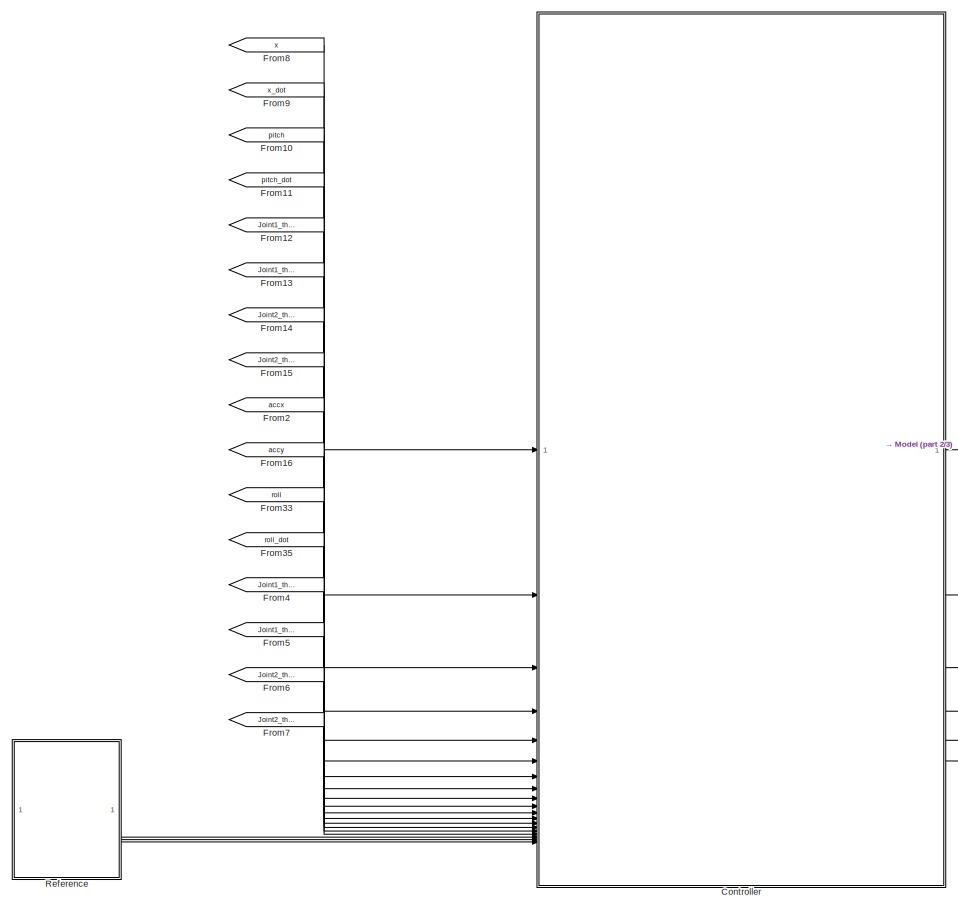
[diagram: root canvas - part 1/3, top left region]
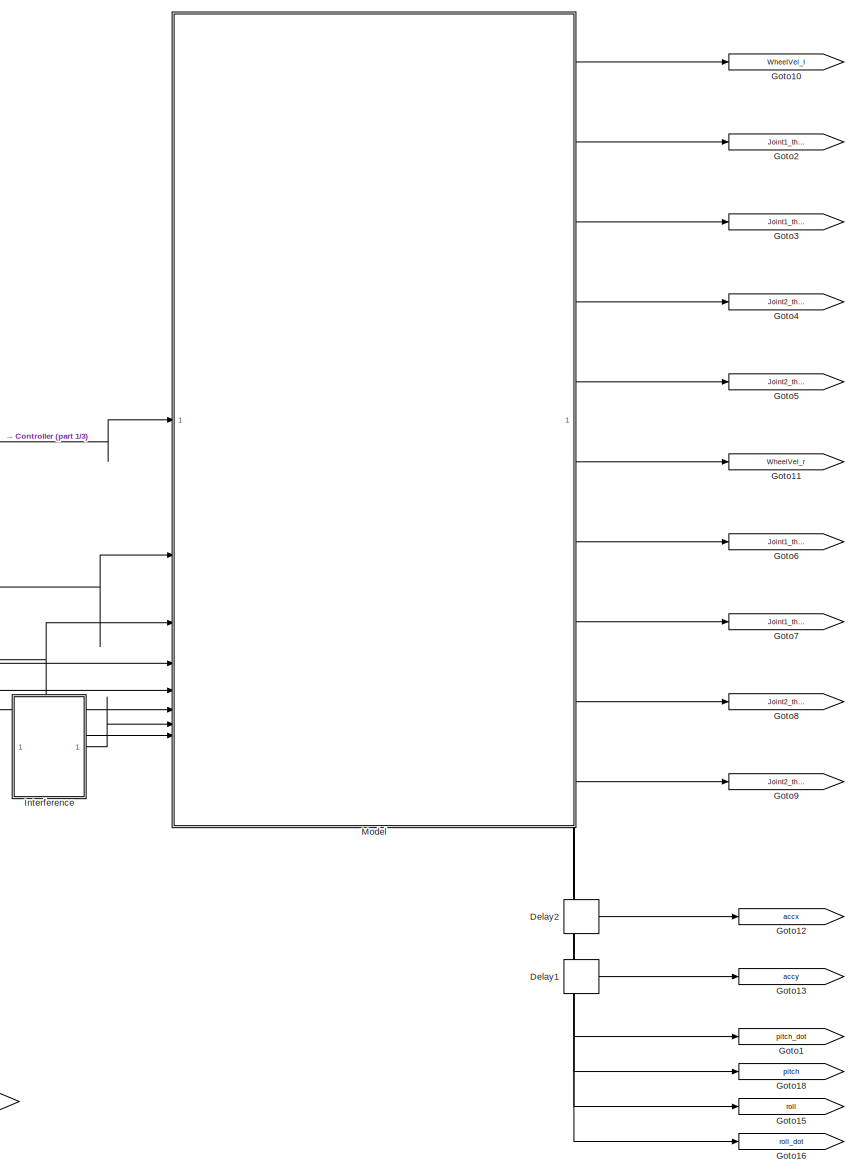
[diagram: root canvas - part 2/3, right side, full height]
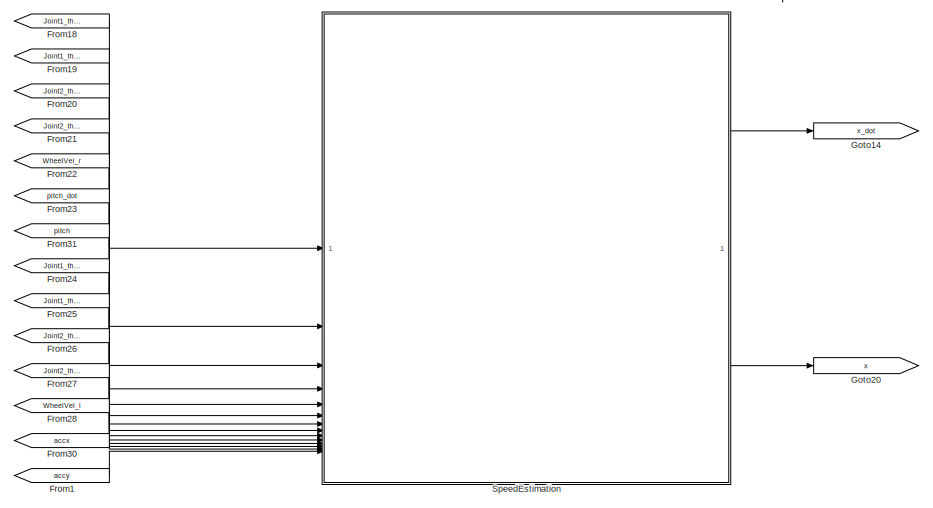
[diagram: root canvas - part 3/3, bottom center region]
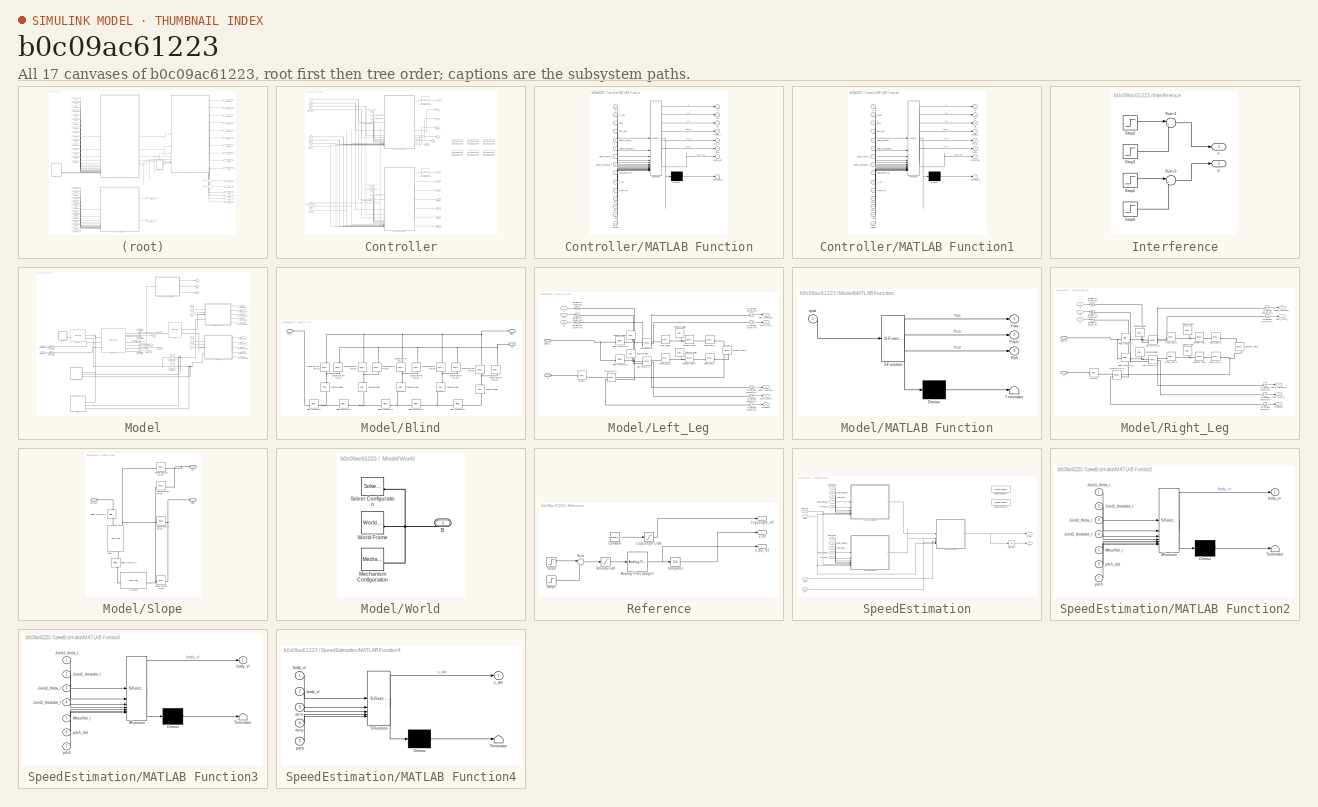
[diagram: thumbnail index - all 17 canvases of the model, root first then tree order]
MODEL slx_b0c09ac61223
KIND model
CONFIG AbsTol = 1e-3
CONFIG EnableMultiTasking = off
CONFIG FixedStep = 0.001
CONFIG MaxStep = auto
CONFIG MinStep = auto
CONFIG RelTol = 1e-3
CONFIG SampleTimeConstraint = Unconstrained
CONFIG SolverName = FixedStepAuto
CONFIG StartTime = 0.0
CONFIG StopTime = 10
WORKSPACE source: external: MATLAB File  (data not in archive)
BLOCK [SubSystem] Controller
BLOCK [Reference] Controller/Analog Filter Design1  REF=dspfdesign/Analog
Filter Design
  SourceBlock = dspfdesign/Analog\nFilter Design
  SourceType = Analog Filter Design
BLOCK [Reference] Controller/Analog Filter Design2  REF=dspfdesign/Analog
Filter Design
  SourceBlock = dspfdesign/Analog\nFilter Design
  SourceType = Analog Filter Design
BLOCK [DataStoreMemory] Controller/Data Store Memory
  DataStoreName = theta_dot_llast
  OutDataTypeStr = double
  ShowAdditionalParam = off
  SignalType = real
  WriteAfterWriteMsg = warning
BLOCK [DataStoreMemory] Controller/Data Store Memory1
  DataStoreName = LegLength_dot_llast
  OutDataTypeStr = double
  ShowAdditionalParam = off
  SignalType = real
  WriteAfterWriteMsg = warning
BLOCK [DataStoreMemory] Controller/Data Store Memory2
  DataStoreName = theta_dot_rlast
  OutDataTypeStr = double
  ShowAdditionalParam = off
  SignalType = real
  WriteAfterWriteMsg = warning
BLOCK [DataStoreMemory] Controller/Data Store Memory3
  DataStoreName = LegLength_dot_rlast
  OutDataTypeStr = double
  ShowAdditionalParam = off
  SignalType = real
  WriteAfterWriteMsg = warning
BLOCK [DataStoreMemory] Controller/Data Store Memory4
  DataStoreName = FN_l
  InitialValue = 110
  OutDataTypeStr = double
  ShowAdditionalParam = off
  SignalType = real
  WriteAfterWriteMsg = warning
BLOCK [DataStoreMemory] Controller/Data Store Memory5
  DataStoreName = FN_r
  InitialValue = 110
  OutDataTypeStr = double
  ShowAdditionalParam = off
  SignalType = real
  WriteAfterWriteMsg = warning
BLOCK [Outport] Controller/FN_lo
  Port = 8
BLOCK [Outport] Controller/FN_ro
  Port = 10
BLOCK [Outport] Controller/Height_l
  Port = 7
BLOCK [Outport] Controller/Height_r
  Port = 9
BLOCK [Inport] Controller/Joint1_theta_l
  Port = 5
BLOCK [Inport] Controller/Joint1_theta_r
  Port = 13
BLOCK [Inport] Controller/Joint1_thetadot_l
  Port = 6
BLOCK [Inport] Controller/Joint1_thetadot_r
  Port = 14
BLOCK [Inport] Controller/Joint2_theta_l
  Port = 7
BLOCK [Inport] Controller/Joint2_theta_r
  Port = 15
BLOCK [Inport] Controller/Joint2_thetadot_l
  Port = 8
BLOCK [Inport] Controller/Joint2_thetadot_r
  Port = 16
BLOCK [Inport] Controller/LegLength_ref
  Port = 17
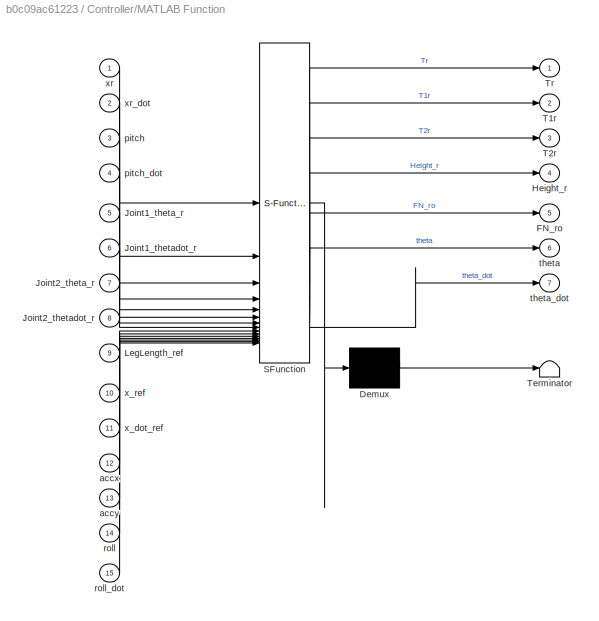
BLOCK [SubSystem] Controller/MATLAB Function
  ErrorFcn = Stateflow.Translate.translate
  PermitHierarchicalResolution = ExplicitOnly
  SFBlockType = MATLAB Function
  SystemSampleTime = 0.001
  TreatAsAtomicUnit = on
BLOCK [Demux] Controller/MATLAB Function/ Demux 
  Outputs = 1
BLOCK [S-Function] Controller/MATLAB Function/ SFunction 
  EnableBusSupport = on
  FunctionName = sf_sfun
  PortCounts = [15 8]
  SFcnIsStateOwnerBlock = off
  SFunctionDeploymentMode = off
  Tag = Stateflow S-Function 1
BLOCK [Terminator] Controller/MATLAB Function/ Terminator 
BLOCK [Outport] Controller/MATLAB Function/FN_ro
  Port = 5
BLOCK [Outport] Controller/MATLAB Function/Height_r
  Port = 4
BLOCK [Inport] Controller/MATLAB Function/Joint1_theta_r
  Port = 5
BLOCK [Inport] Controller/MATLAB Function/Joint1_thetadot_r
  Port = 6
BLOCK [Inport] Controller/MATLAB Function/Joint2_theta_r
  Port = 7
BLOCK [Inport] Controller/MATLAB Function/Joint2_thetadot_r
  Port = 8
BLOCK [Inport] Controller/MATLAB Function/LegLength_ref
  Port = 9
BLOCK [Outport] Controller/MATLAB Function/T1r
  Port = 2
BLOCK [Outport] Controller/MATLAB Function/T2r
  Port = 3
BLOCK [Outport] Controller/MATLAB Function/Tr
BLOCK [Inport] Controller/MATLAB Function/accx
  Port = 12
BLOCK [Inport] Controller/MATLAB Function/accy
  Port = 13
BLOCK [Inport] Controller/MATLAB Function/pitch
  Port = 3
BLOCK [Inport] Controller/MATLAB Function/pitch_dot
  Port = 4
BLOCK [Inport] Controller/MATLAB Function/roll
  Port = 14
BLOCK [Inport] Controller/MATLAB Function/roll_dot
  Port = 15
BLOCK [Outport] Controller/MATLAB Function/theta
  Port = 6
BLOCK [Outport] Controller/MATLAB Function/theta_dot
  Port = 7
BLOCK [Inport] Controller/MATLAB Function/x_dot_ref
  Port = 11
BLOCK [Inport] Controller/MATLAB Function/x_ref
  Port = 10
BLOCK [Inport] Controller/MATLAB Function/xr
BLOCK [Inport] Controller/MATLAB Function/xr_dot
  Port = 2
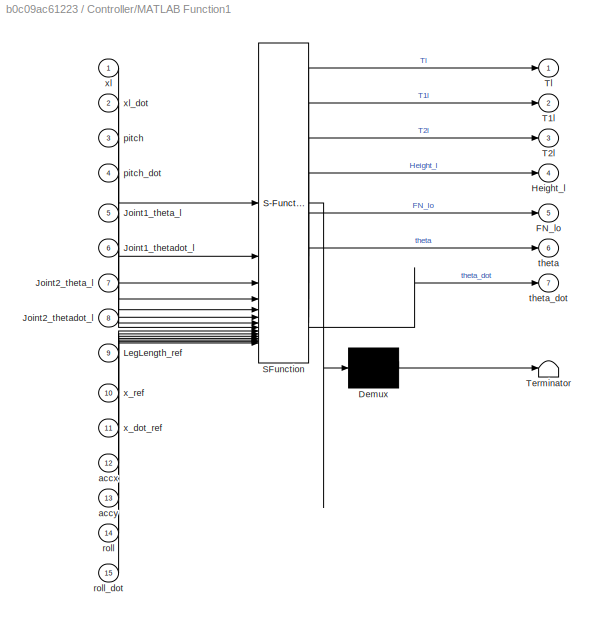
BLOCK [SubSystem] Controller/MATLAB Function1
  ErrorFcn = Stateflow.Translate.translate
  PermitHierarchicalResolution = ExplicitOnly
  SFBlockType = MATLAB Function
  SystemSampleTime = 0.001
  TreatAsAtomicUnit = on
BLOCK [Demux] Controller/MATLAB Function1/ Demux 
  Outputs = 1
BLOCK [S-Function] Controller/MATLAB Function1/ SFunction 
  EnableBusSupport = on
  FunctionName = sf_sfun
  PortCounts = [15 8]
  SFcnIsStateOwnerBlock = off
  SFunctionDeploymentMode = off
  Tag = Stateflow S-Function 3
BLOCK [Terminator] Controller/MATLAB Function1/ Terminator 
BLOCK [Outport] Controller/MATLAB Function1/FN_lo
  Port = 5
BLOCK [Outport] Controller/MATLAB Function1/Height_l
  Port = 4
BLOCK [Inport] Controller/MATLAB Function1/Joint1_theta_l
  Port = 5
BLOCK [Inport] Controller/MATLAB Function1/Joint1_thetadot_l
  Port = 6
BLOCK [Inport] Controller/MATLAB Function1/Joint2_theta_l
  Port = 7
BLOCK [Inport] Controller/MATLAB Function1/Joint2_thetadot_l
  Port = 8
BLOCK [Inport] Controller/MATLAB Function1/LegLength_ref
  Port = 9
BLOCK [Outport] Controller/MATLAB Function1/T1l
  Port = 2
BLOCK [Outport] Controller/MATLAB Function1/T2l
  Port = 3
BLOCK [Outport] Controller/MATLAB Function1/Tl
BLOCK [Inport] Controller/MATLAB Function1/accx
  Port = 12
BLOCK [Inport] Controller/MATLAB Function1/accy
  Port = 13
BLOCK [Inport] Controller/MATLAB Function1/pitch
  Port = 3
BLOCK [Inport] Controller/MATLAB Function1/pitch_dot
  Port = 4
BLOCK [Inport] Controller/MATLAB Function1/roll
  Port = 14
BLOCK [Inport] Controller/MATLAB Function1/roll_dot
  Port = 15
BLOCK [Outport] Controller/MATLAB Function1/theta
  Port = 6
BLOCK [Outport] Controller/MATLAB Function1/theta_dot
  Port = 7
BLOCK [Inport] Controller/MATLAB Function1/x_dot_ref
  Port = 11
BLOCK [Inport] Controller/MATLAB Function1/x_ref
  Port = 10
BLOCK [Inport] Controller/MATLAB Function1/xl
BLOCK [Inport] Controller/MATLAB Function1/xl_dot
  Port = 2
BLOCK [Outport] Controller/T1l
  Port = 2
BLOCK [Outport] Controller/T1r
  Port = 5
BLOCK [Outport] Controller/T2l
  Port = 3
BLOCK [Outport] Controller/T2r
  Port = 6
BLOCK [Outport] Controller/Theta
  Port = 11
BLOCK [Outport] Controller/Theta_d
  Port = 12
BLOCK [Outport] Controller/Tl
BLOCK [Outport] Controller/Tr
  Port = 4
BLOCK [Inport] Controller/accx
  Port = 9
BLOCK [Inport] Controller/accy
  Port = 10
BLOCK [Inport] Controller/pitch
  Port = 3
BLOCK [Inport] Controller/pitch_dot
  Port = 4
BLOCK [Inport] Controller/roll
  Port = 11
BLOCK [Inport] Controller/roll_dot
  Port = 12
BLOCK [Outport] Controller/theta
  Port = 13
BLOCK [Outport] Controller/theta_d
  Port = 14
BLOCK [Inport] Controller/x
BLOCK [Inport] Controller/x_dot
  Port = 2
BLOCK [Inport] Controller/x_dot_ref
  Port = 19
BLOCK [Inport] Controller/x_ref
  Port = 18
BLOCK [Delay] Delay1
  DelayLength = 5
  InputPortMap = u0
BLOCK [Delay] Delay2
  DelayLength = 5
  InputPortMap = u0
BLOCK [From] From1
  GotoTag = accy
BLOCK [From] From10
  GotoTag = pitch
BLOCK [From] From11
  GotoTag = pitch_dot
BLOCK [From] From12
  GotoTag = Joint1_theta_l
BLOCK [From] From13
  GotoTag = Joint1_thetadot_l
BLOCK [From] From14
  GotoTag = Joint2_theta_l
BLOCK [From] From15
  GotoTag = Joint2_thetadot_l
BLOCK [From] From16
  GotoTag = accy
BLOCK [From] From18
  GotoTag = Joint1_theta_r
BLOCK [From] From19
  GotoTag = Joint1_thetadot_r
BLOCK [From] From2
  GotoTag = accx
BLOCK [From] From20
  GotoTag = Joint2_theta_r
BLOCK [From] From21
  GotoTag = Joint2_thetadot_r
BLOCK [From] From22
  GotoTag = WheelVel_r
BLOCK [From] From23
  GotoTag = pitch_dot
BLOCK [From] From24
  GotoTag = Joint1_theta_l
BLOCK [From] From25
  GotoTag = Joint1_thetadot_l
BLOCK [From] From26
  GotoTag = Joint2_theta_l
BLOCK [From] From27
  GotoTag = Joint2_thetadot_l
BLOCK [From] From28
  GotoTag = WheelVel_l
BLOCK [From] From30
  GotoTag = accx
BLOCK [From] From31
  GotoTag = pitch
BLOCK [From] From33
  GotoTag = roll
BLOCK [From] From35
  GotoTag = roll_dot
BLOCK [From] From4
  GotoTag = Joint1_theta_r
BLOCK [From] From5
  GotoTag = Joint1_thetadot_r
BLOCK [From] From6
  GotoTag = Joint2_theta_r
BLOCK [From] From7
  GotoTag = Joint2_thetadot_r
BLOCK [From] From8
  GotoTag = x
BLOCK [From] From9
  GotoTag = x_dot
BLOCK [Goto] Goto1
  GotoTag = pitch_dot
BLOCK [Goto] Goto10
  GotoTag = WheelVel_l
BLOCK [Goto] Goto11
  GotoTag = WheelVel_r
BLOCK [Goto] Goto12
  GotoTag = accx
BLOCK [Goto] Goto13
  GotoTag = accy
BLOCK [Goto] Goto14
  GotoTag = x_dot
BLOCK [Goto] Goto15
  GotoTag = roll
BLOCK [Goto] Goto16
  GotoTag = roll_dot
BLOCK [Goto] Goto18
  GotoTag = pitch
BLOCK [Goto] Goto2
  GotoTag = Joint1_theta_l
BLOCK [Goto] Goto20
  GotoTag = x
BLOCK [Goto] Goto3
  GotoTag = Joint1_thetadot_l
BLOCK [Goto] Goto4
  GotoTag = Joint2_theta_l
BLOCK [Goto] Goto5
  GotoTag = Joint2_thetadot_l
BLOCK [Goto] Goto6
  GotoTag = Joint1_theta_r
BLOCK [Goto] Goto7
  GotoTag = Joint1_thetadot_r
BLOCK [Goto] Goto8
  GotoTag = Joint2_theta_r
BLOCK [Goto] Goto9
  GotoTag = Joint2_thetadot_r
BLOCK [SubSystem] Interference
BLOCK [Step] Interference/Step1
  After = y_force
  SampleTime = 0
  Time = 0.5
BLOCK [Step] Interference/Step2
  After = x_force
  SampleTime = 0
  Time = 0.5
BLOCK [Step] Interference/Step3
  After = x_force
  SampleTime = 0
  Time = 0.5+x_time
BLOCK [Step] Interference/Step6
  After = y_force
  SampleTime = 0
  Time = 0.5+y_time
BLOCK [Sum] Interference/Sum1
  Inputs = |+-
BLOCK [Sum] Interference/Sum3
  Inputs = |+-
BLOCK [Outport] Interference/x
BLOCK [Outport] Interference/y
  Port = 2
BLOCK [SubSystem] Model
  PortSchema = {"entries":[{"content":{"sides":[{"content":{"connectorIds":["In1","In2","In3","In4","In5","In6","In7","In8"]},"type":"ConnectorPlacement.EquallySpacedRectSide","uuid":"a2ef8d1c-db40-41d8-a076-97a3cc9cbcfc"},{"content":{"connectorIds":["Out1","Out2","Out3","Out4","Out5","Out6","Out7","Out8","Out9","Out10"],"side":"RIGHT"},"type":"ConnectorPlacement.EquallySpacedRectSide","uuid":"78dabc19-8860-4beb...<+535ch>
BLOCK [Reference] Model/6-DOF Joint  REF=sm_lib/Joints/6-DOF Joint
  SourceBlock = sm_lib/Joints/6-DOF Joint
  SourceType = 6-DOF Joint
BLOCK [SubSystem] Model/Blind
  NameLocation = top
BLOCK [PMIOPort] Model/Blind/Base
  Side = Left
BLOCK [Reference] Model/Blind/Cylindrical Solid1  REF=sm_lib/Body Elements/Cylindrical Solid
  NameLocation = left
  SourceBlock = sm_lib/Body Elements/Cylindrical Solid
  SourceType = Cylindrical Solid
BLOCK [Reference] Model/Blind/Cylindrical Solid2  REF=sm_lib/Body Elements/Cylindrical Solid
  NameLocation = left
  SourceBlock = sm_lib/Body Elements/Cylindrical Solid
  SourceType = Cylindrical Solid
BLOCK [Reference] Model/Blind/Cylindrical Solid3  REF=sm_lib/Body Elements/Cylindrical Solid
  NameLocation = left
  SourceBlock = sm_lib/Body Elements/Cylindrical Solid
  SourceType = Cylindrical Solid
BLOCK [Reference] Model/Blind/Cylindrical Solid4  REF=sm_lib/Body Elements/Cylindrical Solid
  NameLocation = left
  SourceBlock = sm_lib/Body Elements/Cylindrical Solid
  SourceType = Cylindrical Solid
BLOCK [Reference] Model/Blind/Cylindrical Solid6  REF=sm_lib/Body Elements/Cylindrical Solid
  NameLocation = left
  SourceBlock = sm_lib/Body Elements/Cylindrical Solid
  SourceType = Cylindrical Solid
BLOCK [PMIOPort] Model/Blind/Left
  NameLocation = top
  Port = 3
  Side = Left
BLOCK [PMIOPort] Model/Blind/Right
  NameLocation = top
  Port = 2
  Side = Left
BLOCK [Reference] Model/Blind/Rigid Transform  REF=sm_lib/Frames and
Transforms/Rigid
Transform
  SourceBlock = sm_lib/Frames and\nTransforms/Rigid\nTransform
  SourceType = Rigid\nTransform
BLOCK [Reference] Model/Blind/Rigid Transform1  REF=sm_lib/Frames and
Transforms/Rigid
Transform
  SourceBlock = sm_lib/Frames and\nTransforms/Rigid\nTransform
  SourceType = Rigid\nTransform
BLOCK [Reference] Model/Blind/Rigid Transform2  REF=sm_lib/Frames and
Transforms/Rigid
Transform
  SourceBlock = sm_lib/Frames and\nTransforms/Rigid\nTransform
  SourceType = Rigid\nTransform
BLOCK [Reference] Model/Blind/Rigid Transform3  REF=sm_lib/Frames and
Transforms/Rigid
Transform
  SourceBlock = sm_lib/Frames and\nTransforms/Rigid\nTransform
  SourceType = Rigid\nTransform
BLOCK [Reference] Model/Blind/Rigid Transform4  REF=sm_lib/Frames and
Transforms/Rigid
Transform
  SourceBlock = sm_lib/Frames and\nTransforms/Rigid\nTransform
  SourceType = Rigid\nTransform
BLOCK [Reference] Model/Blind/Spatial Contact Force1  REF=sm_lib/Forces and
Torques/Spatial
Contact Force
  NameLocation = right
  SourceBlock = sm_lib/Forces and\nTorques/Spatial\nContact Force
  SourceType = Spatial\nContact Force
BLOCK [Reference] Model/Blind/Spatial Contact Force10  REF=sm_lib/Forces and
Torques/Spatial
Contact Force
  NameLocation = right
  SourceBlock = sm_lib/Forces and\nTorques/Spatial\nContact Force
  SourceType = Spatial\nContact Force
BLOCK [Reference] Model/Blind/Spatial Contact Force2  REF=sm_lib/Forces and
Torques/Spatial
Contact Force
  NameLocation = right
  SourceBlock = sm_lib/Forces and\nTorques/Spatial\nContact Force
  SourceType = Spatial\nContact Force
BLOCK [Reference] Model/Blind/Spatial Contact Force3  REF=sm_lib/Forces and
Torques/Spatial
Contact Force
  NameLocation = right
  SourceBlock = sm_lib/Forces and\nTorques/Spatial\nContact Force
  SourceType = Spatial\nContact Force
BLOCK [Reference] Model/Blind/Spatial Contact Force4  REF=sm_lib/Forces and
Torques/Spatial
Contact Force
  NameLocation = right
  SourceBlock = sm_lib/Forces and\nTorques/Spatial\nContact Force
  SourceType = Spatial\nContact Force
BLOCK [Reference] Model/Blind/Spatial Contact Force5  REF=sm_lib/Forces and
Torques/Spatial
Contact Force
  NameLocation = right
  SourceBlock = sm_lib/Forces and\nTorques/Spatial\nContact Force
  SourceType = Spatial\nContact Force
BLOCK [Reference] Model/Blind/Spatial Contact Force6  REF=sm_lib/Forces and
Torques/Spatial
Contact Force
  NameLocation = right
  SourceBlock = sm_lib/Forces and\nTorques/Spatial\nContact Force
  SourceType = Spatial\nContact Force
BLOCK [Reference] Model/Blind/Spatial Contact Force7  REF=sm_lib/Forces and
Torques/Spatial
Contact Force
  NameLocation = right
  SourceBlock = sm_lib/Forces and\nTorques/Spatial\nContact Force
  SourceType = Spatial\nContact Force
BLOCK [Reference] Model/Blind/Spatial Contact Force8  REF=sm_lib/Forces and
Torques/Spatial
Contact Force
  NameLocation = right
  SourceBlock = sm_lib/Forces and\nTorques/Spatial\nContact Force
  SourceType = Spatial\nContact Force
BLOCK [Reference] Model/Blind/Spatial Contact Force9  REF=sm_lib/Forces and
Torques/Spatial
Contact Force
  NameLocation = right
  SourceBlock = sm_lib/Forces and\nTorques/Spatial\nContact Force
  SourceType = Spatial\nContact Force
BLOCK [Reference] Model/Body  REF=sm_lib/Body Elements/Brick Solid
  NameLocation = top
  SourceBlock = sm_lib/Body Elements/Brick Solid
  SourceType = Brick Solid
BLOCK [Reference] Model/Ground  REF=sm_lib/Body Elements/Brick Solid
  NameLocation = top
  SourceBlock = sm_lib/Body Elements/Brick Solid
  SourceType = Brick Solid
BLOCK [Outport] Model/Joint1_theta_l
  Port = 2
BLOCK [Outport] Model/Joint1_theta_r
  Port = 7
BLOCK [Outport] Model/Joint1_thetadot_l
  Port = 3
BLOCK [Outport] Model/Joint1_thetadot_r
  Port = 8
BLOCK [Outport] Model/Joint2_theta_l
  Port = 4
BLOCK [Outport] Model/Joint2_theta_r
  Port = 9
BLOCK [Outport] Model/Joint2_thetadot_l
  Port = 5
BLOCK [Outport] Model/Joint2_thetadot_r
  Port = 10
BLOCK [SubSystem] Model/Left_Leg
BLOCK [Reference] Model/Left_Leg/Active_Leg1_L  REF=sm_lib/Body Elements/Brick Solid
  SourceBlock = sm_lib/Body Elements/Brick Solid
  SourceType = Brick Solid
BLOCK [Reference] Model/Left_Leg/Active_Leg2_L  REF=sm_lib/Body Elements/Brick Solid
  SourceBlock = sm_lib/Body Elements/Brick Solid
  SourceType = Brick Solid
BLOCK [PMIOPort] Model/Left_Leg/Body_L
  Side = Left
BLOCK [Reference] Model/Left_Leg/Cylindrical Solid4  REF=sm_lib/Body Elements/Cylindrical Solid
  NameLocation = left
  SourceBlock = sm_lib/Body Elements/Cylindrical Solid
  SourceType = Cylindrical Solid
BLOCK [Reference] Model/Left_Leg/Cylindrical Solid5  REF=sm_lib/Body Elements/Cylindrical Solid
  NameLocation = left
  SourceBlock = sm_lib/Body Elements/Cylindrical Solid
  SourceType = Cylindrical Solid
BLOCK [Reference] Model/Left_Leg/Cylindrical Solid6  REF=sm_lib/Body Elements/Cylindrical Solid
  NameLocation = left
  SourceBlock = sm_lib/Body Elements/Cylindrical Solid
  SourceType = Cylindrical Solid
BLOCK [Reference] Model/Left_Leg/Cylindrical Solid7  REF=sm_lib/Body Elements/Cylindrical Solid
  NameLocation = left
  SourceBlock = sm_lib/Body Elements/Cylindrical Solid
  SourceType = Cylindrical Solid
BLOCK [PMIOPort] Model/Left_Leg/G
  Port = 2
  Side = Left
BLOCK [Outport] Model/Left_Leg/Joint1_theta_l
  Port = 2
BLOCK [Outport] Model/Left_Leg/Joint1_thetadot_l
  Port = 3
BLOCK [Outport] Model/Left_Leg/Joint2_theta_l
  Port = 4
BLOCK [Outport] Model/Left_Leg/Joint2_thetadot_l
  Port = 5
BLOCK [Reference] Model/Left_Leg/Joint_Motor1_L  REF=sm_lib/Joints/Revolute Joint
  SourceBlock = sm_lib/Joints/Revolute Joint
  SourceType = Revolute Joint
BLOCK [Reference] Model/Left_Leg/Joint_Motor2_L  REF=sm_lib/Joints/Revolute Joint
  SourceBlock = sm_lib/Joints/Revolute Joint
  SourceType = Revolute Joint
BLOCK [Reference] Model/Left_Leg/PS-Simulink Converter1  REF=nesl_utility/PS-Simulink
Converter
  SourceBlock = nesl_utility/PS-Simulink\nConverter
  SourceType = PS-Simulink\nConverter
BLOCK [Reference] Model/Left_Leg/PS-Simulink Converter2  REF=nesl_utility/PS-Simulink
Converter
  SourceBlock = nesl_utility/PS-Simulink\nConverter
  SourceType = PS-Simulink\nConverter
BLOCK [Reference] Model/Left_Leg/PS-Simulink Converter4  REF=nesl_utility/PS-Simulink
Converter
  SourceBlock = nesl_utility/PS-Simulink\nConverter
  SourceType = PS-Simulink\nConverter
BLOCK [Reference] Model/Left_Leg/PS-Simulink Converter5  REF=nesl_utility/PS-Simulink
Converter
  SourceBlock = nesl_utility/PS-Simulink\nConverter
  SourceType = PS-Simulink\nConverter
BLOCK [Reference] Model/Left_Leg/PS-Simulink Converter6  REF=nesl_utility/PS-Simulink
Converter
  SourceBlock = nesl_utility/PS-Simulink\nConverter
  SourceType = PS-Simulink\nConverter
BLOCK [Reference] Model/Left_Leg/Revolute Joint3  REF=sm_lib/Joints/Revolute Joint
  SourceBlock = sm_lib/Joints/Revolute Joint
  SourceType = Revolute Joint
BLOCK [Reference] Model/Left_Leg/Revolute Joint4  REF=sm_lib/Joints/Revolute Joint
  SourceBlock = sm_lib/Joints/Revolute Joint
  SourceType = Revolute Joint
BLOCK [Reference] Model/Left_Leg/Revolute Joint5  REF=sm_lib/Joints/Revolute Joint
  NameLocation = left
  SourceBlock = sm_lib/Joints/Revolute Joint
  SourceType = Revolute Joint
BLOCK [Reference] Model/Left_Leg/Rigid Transform1  REF=sm_lib/Frames and
Transforms/Rigid
Transform
  SourceBlock = sm_lib/Frames and\nTransforms/Rigid\nTransform
  SourceType = Rigid\nTransform
BLOCK [Reference] Model/Left_Leg/Rigid Transform2  REF=sm_lib/Frames and
Transforms/Rigid
Transform
  SourceBlock = sm_lib/Frames and\nTransforms/Rigid\nTransform
  SourceType = Rigid\nTransform
BLOCK [Reference] Model/Left_Leg/Simulink-PS Converter  REF=nesl_utility/Simulink-PS
Converter
  SourceBlock = nesl_utility/Simulink-PS\nConverter
  SourceType = Simulink-PS\nConverter
BLOCK [Reference] Model/Left_Leg/Simulink-PS Converter2  REF=nesl_utility/Simulink-PS
Converter
  SourceBlock = nesl_utility/Simulink-PS\nConverter
  SourceType = Simulink-PS\nConverter
BLOCK [Reference] Model/Left_Leg/Simulink-PS Converter5  REF=nesl_utility/Simulink-PS
Converter
  SourceBlock = nesl_utility/Simulink-PS\nConverter
  SourceType = Simulink-PS\nConverter
BLOCK [Reference] Model/Left_Leg/Slave_Leg1_L  REF=sm_lib/Body Elements/Brick Solid
  SourceBlock = sm_lib/Body Elements/Brick Solid
  SourceType = Brick Solid
BLOCK [Reference] Model/Left_Leg/Slave_Leg2_L  REF=sm_lib/Body Elements/Brick Solid
  SourceBlock = sm_lib/Body Elements/Brick Solid
  SourceType = Brick Solid
BLOCK [Inport] Model/Left_Leg/T1l
  Port = 2
BLOCK [Inport] Model/Left_Leg/T2l
  Port = 3
BLOCK [Inport] Model/Left_Leg/Tl
BLOCK [Outport] Model/Left_Leg/WheelVel_l
BLOCK [Reference] Model/Left_Leg/Wheel_L  REF=sm_lib/Body Elements/Cylindrical Solid
  SourceBlock = sm_lib/Body Elements/Cylindrical Solid
  SourceType = Cylindrical Solid
BLOCK [Reference] Model/Left_Leg/Wheel_Motor_L  REF=sm_lib/Joints/Revolute Joint
  NameLocation = top
  SourceBlock = sm_lib/Joints/Revolute Joint
  SourceType = Revolute Joint
BLOCK [SubSystem] Model/MATLAB Function
  ErrorFcn = Stateflow.Translate.translate
  PermitHierarchicalResolution = ExplicitOnly
  SFBlockType = MATLAB Function
  TreatAsAtomicUnit = on
BLOCK [Demux] Model/MATLAB Function/ Demux 
  Outputs = 1
BLOCK [S-Function] Model/MATLAB Function/ SFunction 
  EnableBusSupport = on
  FunctionName = sf_sfun
  PortCounts = [1 4]
  SFcnIsStateOwnerBlock = off
  SFunctionDeploymentMode = off
  Tag = Stateflow S-Function 4
BLOCK [Terminator] Model/MATLAB Function/ Terminator 
BLOCK [Outport] Model/MATLAB Function/Pitch
  Port = 2
BLOCK [Outport] Model/MATLAB Function/Roll
  Port = 3
BLOCK [Outport] Model/MATLAB Function/Yaw
BLOCK [Inport] Model/MATLAB Function/quat
BLOCK [Reference] Model/PS-Simulink Converter1  REF=nesl_utility/PS-Simulink
Converter
  SourceBlock = nesl_utility/PS-Simulink\nConverter
  SourceType = PS-Simulink\nConverter
BLOCK [Reference] Model/PS-Simulink Converter2  REF=nesl_utility/PS-Simulink
Converter
  SourceBlock = nesl_utility/PS-Simulink\nConverter
  SourceType = PS-Simulink\nConverter
BLOCK [Reference] Model/PS-Simulink Converter3  REF=nesl_utility/PS-Simulink
Converter
  SourceBlock = nesl_utility/PS-Simulink\nConverter
  SourceType = PS-Simulink\nConverter
BLOCK [Reference] Model/PS-Simulink Converter4  REF=nesl_utility/PS-Simulink
Converter
  SourceBlock = nesl_utility/PS-Simulink\nConverter
  SourceType = PS-Simulink\nConverter
BLOCK [Reference] Model/PS-Simulink Converter5  REF=nesl_utility/PS-Simulink
Converter
  SourceBlock = nesl_utility/PS-Simulink\nConverter
  SourceType = PS-Simulink\nConverter
BLOCK [Reference] Model/PS-Simulink Converter7  REF=nesl_utility/PS-Simulink
Converter
  SourceBlock = nesl_utility/PS-Simulink\nConverter
  SourceType = PS-Simulink\nConverter
BLOCK [SubSystem] Model/Right_Leg
BLOCK [Reference] Model/Right_Leg/Active_Leg1_R  REF=sm_lib/Body Elements/Brick Solid
  SourceBlock = sm_lib/Body Elements/Brick Solid
  SourceType = Brick Solid
BLOCK [Reference] Model/Right_Leg/Active_Leg2_R  REF=sm_lib/Body Elements/Brick Solid
  SourceBlock = sm_lib/Body Elements/Brick Solid
  SourceType = Brick Solid
BLOCK [PMIOPort] Model/Right_Leg/Body_R
  Side = Left
BLOCK [Reference] Model/Right_Leg/Cylindrical Solid  REF=sm_lib/Body Elements/Cylindrical Solid
  NameLocation = left
  SourceBlock = sm_lib/Body Elements/Cylindrical Solid
  SourceType = Cylindrical Solid
BLOCK [Reference] Model/Right_Leg/Cylindrical Solid1  REF=sm_lib/Body Elements/Cylindrical Solid
  NameLocation = left
  SourceBlock = sm_lib/Body Elements/Cylindrical Solid
  SourceType = Cylindrical Solid
BLOCK [Reference] Model/Right_Leg/Cylindrical Solid2  REF=sm_lib/Body Elements/Cylindrical Solid
  NameLocation = left
  SourceBlock = sm_lib/Body Elements/Cylindrical Solid
  SourceType = Cylindrical Solid
BLOCK [Reference] Model/Right_Leg/Cylindrical Solid3  REF=sm_lib/Body Elements/Cylindrical Solid
  NameLocation = left
  SourceBlock = sm_lib/Body Elements/Cylindrical Solid
  SourceType = Cylindrical Solid
BLOCK [PMIOPort] Model/Right_Leg/G
  Port = 2
  Side = Left
BLOCK [Outport] Model/Right_Leg/Joint1_theta_r
  Port = 2
BLOCK [Outport] Model/Right_Leg/Joint1_thetadot_r
  Port = 3
BLOCK [Outport] Model/Right_Leg/Joint2_theta_r
  Port = 4
BLOCK [Outport] Model/Right_Leg/Joint2_thetadot_r
  Port = 5
BLOCK [Reference] Model/Right_Leg/Joint_Motor1_R  REF=sm_lib/Joints/Revolute Joint
  SourceBlock = sm_lib/Joints/Revolute Joint
  SourceType = Revolute Joint
BLOCK [Reference] Model/Right_Leg/Joint_Motor2_R  REF=sm_lib/Joints/Revolute Joint
  SourceBlock = sm_lib/Joints/Revolute Joint
  SourceType = Revolute Joint
BLOCK [Reference] Model/Right_Leg/PS-Simulink Converter10  REF=nesl_utility/PS-Simulink
Converter
  SourceBlock = nesl_utility/PS-Simulink\nConverter
  SourceType = PS-Simulink\nConverter
BLOCK [Reference] Model/Right_Leg/PS-Simulink Converter11  REF=nesl_utility/PS-Simulink
Converter
  SourceBlock = nesl_utility/PS-Simulink\nConverter
  SourceType = PS-Simulink\nConverter
BLOCK [Reference] Model/Right_Leg/PS-Simulink Converter7  REF=nesl_utility/PS-Simulink
Converter
  SourceBlock = nesl_utility/PS-Simulink\nConverter
  SourceType = PS-Simulink\nConverter
BLOCK [Reference] Model/Right_Leg/PS-Simulink Converter8  REF=nesl_utility/PS-Simulink
Converter
  SourceBlock = nesl_utility/PS-Simulink\nConverter
  SourceType = PS-Simulink\nConverter
BLOCK [Reference] Model/Right_Leg/PS-Simulink Converter9  REF=nesl_utility/PS-Simulink
Converter
  SourceBlock = nesl_utility/PS-Simulink\nConverter
  SourceType = PS-Simulink\nConverter
BLOCK [Reference] Model/Right_Leg/Revolute Joint  REF=sm_lib/Joints/Revolute Joint
  SourceBlock = sm_lib/Joints/Revolute Joint
  SourceType = Revolute Joint
BLOCK [Reference] Model/Right_Leg/Revolute Joint1  REF=sm_lib/Joints/Revolute Joint
  SourceBlock = sm_lib/Joints/Revolute Joint
  SourceType = Revolute Joint
BLOCK [Reference] Model/Right_Leg/Revolute Joint2  REF=sm_lib/Joints/Revolute Joint
  NameLocation = left
  SourceBlock = sm_lib/Joints/Revolute Joint
  SourceType = Revolute Joint
BLOCK [Reference] Model/Right_Leg/Rigid Transform  REF=sm_lib/Frames and
Transforms/Rigid
Transform
  SourceBlock = sm_lib/Frames and\nTransforms/Rigid\nTransform
  SourceType = Rigid\nTransform
BLOCK [Reference] Model/Right_Leg/Rigid Transform3  REF=sm_lib/Frames and
Transforms/Rigid
Transform
  SourceBlock = sm_lib/Frames and\nTransforms/Rigid\nTransform
  SourceType = Rigid\nTransform
BLOCK [Reference] Model/Right_Leg/Simulink-PS Converter1  REF=nesl_utility/Simulink-PS
Converter
  SourceBlock = nesl_utility/Simulink-PS\nConverter
  SourceType = Simulink-PS\nConverter
BLOCK [Reference] Model/Right_Leg/Simulink-PS Converter6  REF=nesl_utility/Simulink-PS
Converter
  SourceBlock = nesl_utility/Simulink-PS\nConverter
  SourceType = Simulink-PS\nConverter
BLOCK [Reference] Model/Right_Leg/Simulink-PS Converter7  REF=nesl_utility/Simulink-PS
Converter
  SourceBlock = nesl_utility/Simulink-PS\nConverter
  SourceType = Simulink-PS\nConverter
BLOCK [Reference] Model/Right_Leg/Slave_Leg1_R  REF=sm_lib/Body Elements/Brick Solid
  SourceBlock = sm_lib/Body Elements/Brick Solid
  SourceType = Brick Solid
BLOCK [Reference] Model/Right_Leg/Slave_Leg2_R  REF=sm_lib/Body Elements/Brick Solid
  SourceBlock = sm_lib/Body Elements/Brick Solid
  SourceType = Brick Solid
BLOCK [Inport] Model/Right_Leg/T1r
  Port = 2
BLOCK [Inport] Model/Right_Leg/T2r
  Port = 3
BLOCK [Inport] Model/Right_Leg/Tr
BLOCK [Outport] Model/Right_Leg/WheelVel_r
BLOCK [Reference] Model/Right_Leg/Wheel_Motor_R  REF=sm_lib/Joints/Revolute Joint
  NameLocation = top
  SourceBlock = sm_lib/Joints/Revolute Joint
  SourceType = Revolute Joint
BLOCK [Reference] Model/Right_Leg/Wheel_R  REF=sm_lib/Body Elements/Cylindrical Solid
  SourceBlock = sm_lib/Body Elements/Cylindrical Solid
  SourceType = Cylindrical Solid
BLOCK [Reference] Model/Simulink-PS Converter1  REF=nesl_utility/Simulink-PS
Converter
  SourceBlock = nesl_utility/Simulink-PS\nConverter
  SourceType = Simulink-PS\nConverter
BLOCK [Reference] Model/Simulink-PS Converter2  REF=nesl_utility/Simulink-PS
Converter
  SourceBlock = nesl_utility/Simulink-PS\nConverter
  SourceType = Simulink-PS\nConverter
BLOCK [SubSystem] Model/Slope
  NameLocation = top
BLOCK [Reference] Model/Slope/Ground1  REF=sm_lib/Body Elements/Brick Solid
  SourceBlock = sm_lib/Body Elements/Brick Solid
  SourceType = Brick Solid
BLOCK [PMIOPort] Model/Slope/Left
  NameLocation = top
  Port = 3
  Side = Left
BLOCK [PMIOPort] Model/Slope/Right
  NameLocation = top
  Port = 2
  Side = Left
BLOCK [Reference] Model/Slope/Rigid Transform1  REF=sm_lib/Frames and
Transforms/Rigid
Transform
  NameLocation = left
  SourceBlock = sm_lib/Frames and\nTransforms/Rigid\nTransform
  SourceType = Rigid\nTransform
BLOCK [Reference] Model/Slope/Rigid Transform2  REF=sm_lib/Frames and
Transforms/Rigid
Transform
  NameLocation = left
  SourceBlock = sm_lib/Frames and\nTransforms/Rigid\nTransform
  SourceType = Rigid\nTransform
BLOCK [Reference] Model/Slope/Slope  REF=sm_lib/Body Elements/Brick Solid
  NameLocation = left
  SourceBlock = sm_lib/Body Elements/Brick Solid
  SourceType = Brick Solid
BLOCK [Reference] Model/Slope/Spatial Contact Force1  REF=sm_lib/Forces and
Torques/Spatial
Contact Force
  SourceBlock = sm_lib/Forces and\nTorques/Spatial\nContact Force
  SourceType = Spatial\nContact Force
BLOCK [Reference] Model/Slope/Spatial Contact Force2  REF=sm_lib/Forces and
Torques/Spatial
Contact Force
  SourceBlock = sm_lib/Forces and\nTorques/Spatial\nContact Force
  SourceType = Spatial\nContact Force
BLOCK [Reference] Model/Slope/Spatial Contact Force3  REF=sm_lib/Forces and
Torques/Spatial
Contact Force
  SourceBlock = sm_lib/Forces and\nTorques/Spatial\nContact Force
  SourceType = Spatial\nContact Force
BLOCK [Reference] Model/Slope/Spatial Contact Force4  REF=sm_lib/Forces and
Torques/Spatial
Contact Force
  SourceBlock = sm_lib/Forces and\nTorques/Spatial\nContact Force
  SourceType = Spatial\nContact Force
BLOCK [PMIOPort] Model/Slope/Surface
  Side = Left
BLOCK [Reference] Model/Spatial Contact Force1  REF=sm_lib/Forces and
Torques/Spatial
Contact Force
  SourceBlock = sm_lib/Forces and\nTorques/Spatial\nContact Force
  SourceType = Spatial\nContact Force
BLOCK [Reference] Model/Spatial Contact Force5  REF=sm_lib/Forces and
Torques/Spatial
Contact Force
  SourceBlock = sm_lib/Forces and\nTorques/Spatial\nContact Force
  SourceType = Spatial\nContact Force
BLOCK [Inport] Model/T1l
  Port = 2
BLOCK [Inport] Model/T1r
  Port = 5
BLOCK [Inport] Model/T2l
  Port = 3
BLOCK [Inport] Model/T2r
  Port = 6
BLOCK [Inport] Model/Tl
BLOCK [Inport] Model/Tr
  Port = 4
BLOCK [Outport] Model/WheelVel_l
BLOCK [Outport] Model/WheelVel_r
  Port = 6
BLOCK [SubSystem] Model/World
BLOCK [PMIOPort] Model/World/B
  Side = Right
BLOCK [Reference] Model/World/Mechanism Configuration  REF=sm_lib/Utilities/Mechanism
Configuration
  SourceBlock = sm_lib/Utilities/Mechanism\nConfiguration
  SourceType = Mechanism\nConfiguration
BLOCK [Reference] Model/World/Solver Configuration  REF=nesl_utility/Solver
Configuration
  SourceBlock = nesl_utility/Solver\nConfiguration
  SourceType = Solver\nConfiguration
BLOCK [Reference] Model/World/World Frame  REF=sm_lib/Frames and
Transforms/World Frame
  SourceBlock = sm_lib/Frames and\nTransforms/World Frame
  SourceType = World Frame
BLOCK [Outport] Model/ax
  Port = 14
BLOCK [Outport] Model/ay
  Port = 13
BLOCK [Outport] Model/pitch
  Port = 11
BLOCK [Outport] Model/pitch_dot
  Port = 12
BLOCK [Outport] Model/roll
  Port = 15
BLOCK [Outport] Model/roll_dot
  Port = 16
BLOCK [Inport] Model/x_Interference
  Port = 7
BLOCK [Inport] Model/y_Interference
  Port = 8
BLOCK [Outport] Model/yaw
  Port = 17
BLOCK [Outport] Model/yaw_dot
  Port = 18
BLOCK [SubSystem] Reference
BLOCK [Reference] Reference/Analog Filter Design1  REF=dspfdesign/Analog
Filter Design
  SourceBlock = dspfdesign/Analog\nFilter Design
  SourceType = Analog Filter Design
BLOCK [Constant] Reference/Constant
  Value = LegLength_expe
BLOCK [Integrator] Reference/Integrator
BLOCK [Saturate] Reference/LegLength Limit
  LowerLimit = 0.1
  UpperLimit = 0.3
BLOCK [Outport] Reference/LegLength_ref
BLOCK [Step] Reference/Step4
  After = vel_expe
  SampleTime = 0
  Time = 0.3
BLOCK [Step] Reference/Step5
  After = vel_expe
  SampleTime = 0
  Time = 0.3+conti_time
BLOCK [Sum] Reference/Sum
  Inputs = |+-
BLOCK [Saturate] Reference/Velocity Limit
  LowerLimit = -3
  UpperLimit = 3
BLOCK [Outport] Reference/x_dot_ref
  Port = 3
BLOCK [Outport] Reference/x_ref
  Port = 2
BLOCK [SubSystem] SpeedEstimation
BLOCK [DataStoreMemory] SpeedEstimation/Data Store Memory6
  DataStoreName = vel_cov
  InitialValue = 100
  OutDataTypeStr = double
  ShowAdditionalParam = off
  SignalType = real
  WriteAfterWriteMsg = warning
BLOCK [DataStoreMemory] SpeedEstimation/Data Store Memory7
  DataStoreName = vel
  OutDataTypeStr = double
  ShowAdditionalParam = off
  SignalType = real
  WriteAfterWriteMsg = warning
BLOCK [Integrator] SpeedEstimation/Integrator
BLOCK [Inport] SpeedEstimation/Joint1_theta_l
  Port = 8
BLOCK [Inport] SpeedEstimation/Joint1_theta_r
BLOCK [Inport] SpeedEstimation/Joint1_thetadot_l
  Port = 9
BLOCK [Inport] SpeedEstimation/Joint1_thetadot_r
  Port = 2
BLOCK [Inport] SpeedEstimation/Joint2_theta_l
  Port = 10
BLOCK [Inport] SpeedEstimation/Joint2_theta_r
  Port = 3
BLOCK [Inport] SpeedEstimation/Joint2_thetadot_l
  Port = 11
BLOCK [Inport] SpeedEstimation/Joint2_thetadot_r
  Port = 4
BLOCK [SubSystem] SpeedEstimation/MATLAB Function2
  ErrorFcn = Stateflow.Translate.translate
  PermitHierarchicalResolution = ExplicitOnly
  SFBlockType = MATLAB Function
  TreatAsAtomicUnit = on
BLOCK [Demux] SpeedEstimation/MATLAB Function2/ Demux 
  Outputs = 1
BLOCK [S-Function] SpeedEstimation/MATLAB Function2/ SFunction 
  EnableBusSupport = on
  FunctionName = sf_sfun
  PortCounts = [7 2]
  SFcnIsStateOwnerBlock = off
  SFunctionDeploymentMode = off
  Tag = Stateflow S-Function 2
BLOCK [Terminator] SpeedEstimation/MATLAB Function2/ Terminator 
BLOCK [Inport] SpeedEstimation/MATLAB Function2/Joint1_theta_r
BLOCK [Inport] SpeedEstimation/MATLAB Function2/Joint1_thetadot_r
  Port = 2
BLOCK [Inport] SpeedEstimation/MATLAB Function2/Joint2_theta_r
  Port = 3
BLOCK [Inport] SpeedEstimation/MATLAB Function2/Joint2_thetadot_r
  Port = 4
BLOCK [Inport] SpeedEstimation/MATLAB Function2/WheelVel_r
  Port = 5
BLOCK [Outport] SpeedEstimation/MATLAB Function2/body_vr
BLOCK [Inport] SpeedEstimation/MATLAB Function2/pitch
  Port = 7
BLOCK [Inport] SpeedEstimation/MATLAB Function2/pitch_dot
  Port = 6
BLOCK [SubSystem] SpeedEstimation/MATLAB Function3
  ErrorFcn = Stateflow.Translate.translate
  PermitHierarchicalResolution = ExplicitOnly
  SFBlockType = MATLAB Function
  TreatAsAtomicUnit = on
BLOCK [Demux] SpeedEstimation/MATLAB Function3/ Demux 
  Outputs = 1
BLOCK [S-Function] SpeedEstimation/MATLAB Function3/ SFunction 
  EnableBusSupport = on
  FunctionName = sf_sfun
  PortCounts = [7 2]
  SFcnIsStateOwnerBlock = off
  SFunctionDeploymentMode = off
  Tag = Stateflow S-Function 5
BLOCK [Terminator] SpeedEstimation/MATLAB Function3/ Terminator 
BLOCK [Inport] SpeedEstimation/MATLAB Function3/Joint1_theta_l
BLOCK [Inport] SpeedEstimation/MATLAB Function3/Joint1_thetadot_l
  Port = 2
BLOCK [Inport] SpeedEstimation/MATLAB Function3/Joint2_theta_l
  Port = 3
BLOCK [Inport] SpeedEstimation/MATLAB Function3/Joint2_thetadot_l
  Port = 4
BLOCK [Inport] SpeedEstimation/MATLAB Function3/WheelVel_l
  Port = 5
BLOCK [Outport] SpeedEstimation/MATLAB Function3/body_vl
BLOCK [Inport] SpeedEstimation/MATLAB Function3/pitch
  Port = 7
BLOCK [Inport] SpeedEstimation/MATLAB Function3/pitch_dot
  Port = 6
BLOCK [SubSystem] SpeedEstimation/MATLAB Function4
  ErrorFcn = Stateflow.Translate.translate
  PermitHierarchicalResolution = ExplicitOnly
  SFBlockType = MATLAB Function
  TreatAsAtomicUnit = on
BLOCK [Demux] SpeedEstimation/MATLAB Function4/ Demux 
  Outputs = 1
BLOCK [S-Function] SpeedEstimation/MATLAB Function4/ SFunction 
  EnableBusSupport = on
  FunctionName = sf_sfun
  PortCounts = [5 2]
  SFcnIsStateOwnerBlock = off
  SFunctionDeploymentMode = off
  Tag = Stateflow S-Function 6
BLOCK [Terminator] SpeedEstimation/MATLAB Function4/ Terminator 
BLOCK [Inport] SpeedEstimation/MATLAB Function4/accx
  Port = 3
BLOCK [Inport] SpeedEstimation/MATLAB Function4/accy
  Port = 4
BLOCK [Inport] SpeedEstimation/MATLAB Function4/body_vl
  Port = 2
BLOCK [Inport] SpeedEstimation/MATLAB Function4/body_vr
BLOCK [Inport] SpeedEstimation/MATLAB Function4/pitch
  Port = 5
BLOCK [Outport] SpeedEstimation/MATLAB Function4/x_dot
BLOCK [Inport] SpeedEstimation/WheelVel_l
  Port = 12
BLOCK [Inport] SpeedEstimation/WheelVel_r
  Port = 5
BLOCK [Inport] SpeedEstimation/accx
  Port = 13
BLOCK [Inport] SpeedEstimation/accy
  Port = 14
BLOCK [Inport] SpeedEstimation/pitch
  Port = 7
BLOCK [Inport] SpeedEstimation/pitch_dot
  Port = 6
BLOCK [Outport] SpeedEstimation/x
  Port = 2
BLOCK [Outport] SpeedEstimation/x_dot
LINE Controller/Analog Filter Design1:1 -> Controller/Tr:1
LINE Controller/Analog Filter Design2:1 -> Controller/Tl:1
LINE Controller/Joint1_theta_l:1 -> Controller/MATLAB Function1:5
LINE Controller/Joint1_theta_r:1 -> Controller/MATLAB Function:5
LINE Controller/Joint1_thetadot_l:1 -> Controller/MATLAB Function1:6
LINE Controller/Joint1_thetadot_r:1 -> Controller/MATLAB Function:6
LINE Controller/Joint2_theta_l:1 -> Controller/MATLAB Function1:7
LINE Controller/Joint2_theta_r:1 -> Controller/MATLAB Function:7
LINE Controller/Joint2_thetadot_l:1 -> Controller/MATLAB Function1:8
LINE Controller/Joint2_thetadot_r:1 -> Controller/MATLAB Function:8
NET Controller/LegLength_ref:1 -> Controller/MATLAB Function1:9, Controller/MATLAB Function:9
LINE Controller/MATLAB Function1:1 -> Controller/Analog Filter Design2:1
LINE Controller/MATLAB Function1:2 -> Controller/T1l:1
LINE Controller/MATLAB Function1:3 -> Controller/T2l:1
LINE Controller/MATLAB Function1:4 -> Controller/Height_l:1
LINE Controller/MATLAB Function1:5 -> Controller/FN_lo:1
LINE Controller/MATLAB Function1:6 -> Controller/Theta:1
LINE Controller/MATLAB Function1:7 -> Controller/Theta_d:1
LINE Controller/MATLAB Function:1 -> Controller/Analog Filter Design1:1
LINE Controller/MATLAB Function:2 -> Controller/T1r:1
LINE Controller/MATLAB Function:3 -> Controller/T2r:1
LINE Controller/MATLAB Function:4 -> Controller/Height_r:1
LINE Controller/MATLAB Function:5 -> Controller/FN_ro:1
LINE Controller/MATLAB Function:6 -> Controller/theta:1
LINE Controller/MATLAB Function:7 -> Controller/theta_d:1
NET Controller/accx:1 -> Controller/MATLAB Function1:12, Controller/MATLAB Function:12
NET Controller/accy:1 -> Controller/MATLAB Function1:13, Controller/MATLAB Function:13
NET Controller/pitch:1 -> Controller/MATLAB Function1:3, Controller/MATLAB Function:3
NET Controller/pitch_dot:1 -> Controller/MATLAB Function1:4, Controller/MATLAB Function:4
NET Controller/roll:1 -> Controller/MATLAB Function1:14, Controller/MATLAB Function:14
NET Controller/roll_dot:1 -> Controller/MATLAB Function1:15, Controller/MATLAB Function:15
NET Controller/x:1 -> Controller/MATLAB Function1:1, Controller/MATLAB Function:1
NET Controller/x_dot:1 -> Controller/MATLAB Function1:2, Controller/MATLAB Function:2
NET Controller/x_dot_ref:1 -> Controller/MATLAB Function1:11, Controller/MATLAB Function:11
NET Controller/x_ref:1 -> Controller/MATLAB Function1:10, Controller/MATLAB Function:10
LINE Controller:1 -> Model:1
LINE Controller:2 -> Model:2
LINE Controller:3 -> Model:3
LINE Controller:4 -> Model:4
LINE Controller:5 -> Model:5
LINE Controller:6 -> Model:6
LINE Delay1:1 -> Goto13:1
LINE Delay2:1 -> Goto12:1
LINE From10:1 -> Controller:3
LINE From11:1 -> Controller:4
LINE From12:1 -> Controller:5
LINE From13:1 -> Controller:6
LINE From14:1 -> Controller:7
LINE From15:1 -> Controller:8
LINE From16:1 -> Controller:10
LINE From18:1 -> SpeedEstimation:1
LINE From19:1 -> SpeedEstimation:2
LINE From1:1 -> SpeedEstimation:14
LINE From20:1 -> SpeedEstimation:3
LINE From21:1 -> SpeedEstimation:4
LINE From22:1 -> SpeedEstimation:5
LINE From23:1 -> SpeedEstimation:6
LINE From24:1 -> SpeedEstimation:8
LINE From25:1 -> SpeedEstimation:9
LINE From26:1 -> SpeedEstimation:10
LINE From27:1 -> SpeedEstimation:11
LINE From28:1 -> SpeedEstimation:12
LINE From2:1 -> Controller:9
LINE From30:1 -> SpeedEstimation:13
LINE From31:1 -> SpeedEstimation:7
LINE From33:1 -> Controller:11
LINE From35:1 -> Controller:12
LINE From4:1 -> Controller:13
LINE From5:1 -> Controller:14
LINE From6:1 -> Controller:15
LINE From7:1 -> Controller:16
LINE From8:1 -> Controller:1
LINE From9:1 -> Controller:2
LINE Interference/Step1:1 -> Interference/Sum3:1
LINE Interference/Step2:1 -> Interference/Sum1:1
LINE Interference/Step3:1 -> Interference/Sum1:2
LINE Interference/Step6:1 -> Interference/Sum3:2
LINE Interference/Sum1:1 -> Interference/x:1
LINE Interference/Sum3:1 -> Interference/y:1
LINE Interference:1 -> Model:7
LINE Interference:2 -> Model:8
LINE Model/Left_Leg/PS-Simulink Converter1:1 -> Model/Left_Leg/WheelVel_l:1
LINE Model/Left_Leg/PS-Simulink Converter2:1 -> Model/Left_Leg/Joint1_theta_l:1
LINE Model/Left_Leg/PS-Simulink Converter4:1 -> Model/Left_Leg/Joint1_thetadot_l:1
LINE Model/Left_Leg/PS-Simulink Converter5:1 -> Model/Left_Leg/Joint2_theta_l:1
LINE Model/Left_Leg/PS-Simulink Converter6:1 -> Model/Left_Leg/Joint2_thetadot_l:1
LINE Model/Left_Leg/T1l:1 -> Model/Left_Leg/Simulink-PS Converter2:1
LINE Model/Left_Leg/T2l:1 -> Model/Left_Leg/Simulink-PS Converter5:1
LINE Model/Left_Leg/Tl:1 -> Model/Left_Leg/Simulink-PS Converter:1
LINE Model/Left_Leg:1 -> Model/WheelVel_l:1
LINE Model/Left_Leg:2 -> Model/Joint1_theta_l:1
LINE Model/Left_Leg:3 -> Model/Joint1_thetadot_l:1
LINE Model/Left_Leg:4 -> Model/Joint2_theta_l:1
LINE Model/Left_Leg:5 -> Model/Joint2_thetadot_l:1
LINE Model/MATLAB Function:1 -> Model/yaw:1
LINE Model/MATLAB Function:2 -> Model/pitch:1
LINE Model/MATLAB Function:3 -> Model/roll:1
LINE Model/PS-Simulink Converter1:1 -> Model/ax:1
LINE Model/PS-Simulink Converter2:1 -> Model/ay:1
LINE Model/PS-Simulink Converter3:1 -> Model/roll_dot:1
LINE Model/PS-Simulink Converter4:1 -> Model/MATLAB Function:1
LINE Model/PS-Simulink Converter5:1 -> Model/yaw_dot:1
LINE Model/PS-Simulink Converter7:1 -> Model/pitch_dot:1
LINE Model/Right_Leg/PS-Simulink Converter10:1 -> Model/Right_Leg/Joint2_theta_r:1
LINE Model/Right_Leg/PS-Simulink Converter11:1 -> Model/Right_Leg/Joint2_thetadot_r:1
LINE Model/Right_Leg/PS-Simulink Converter7:1 -> Model/Right_Leg/WheelVel_r:1
LINE Model/Right_Leg/PS-Simulink Converter8:1 -> Model/Right_Leg/Joint1_theta_r:1
LINE Model/Right_Leg/PS-Simulink Converter9:1 -> Model/Right_Leg/Joint1_thetadot_r:1
LINE Model/Right_Leg/T1r:1 -> Model/Right_Leg/Simulink-PS Converter6:1
LINE Model/Right_Leg/T2r:1 -> Model/Right_Leg/Simulink-PS Converter7:1
LINE Model/Right_Leg/Tr:1 -> Model/Right_Leg/Simulink-PS Converter1:1
LINE Model/Right_Leg:1 -> Model/WheelVel_r:1
LINE Model/Right_Leg:2 -> Model/Joint1_theta_r:1
LINE Model/Right_Leg:3 -> Model/Joint1_thetadot_r:1
LINE Model/Right_Leg:4 -> Model/Joint2_theta_r:1
LINE Model/Right_Leg:5 -> Model/Joint2_thetadot_r:1
LINE Model/T1l:1 -> Model/Left_Leg:2
LINE Model/T1r:1 -> Model/Right_Leg:2
LINE Model/T2l:1 -> Model/Left_Leg:3
LINE Model/T2r:1 -> Model/Right_Leg:3
LINE Model/Tl:1 -> Model/Left_Leg:1
LINE Model/Tr:1 -> Model/Right_Leg:1
LINE Model/x_Interference:1 -> Model/Simulink-PS Converter1:1
LINE Model/y_Interference:1 -> Model/Simulink-PS Converter2:1
LINE Model:1 -> Goto10:1
LINE Model:10 -> Goto9:1
LINE Model:11 -> Goto18:1
LINE Model:12 -> Goto1:1
LINE Model:13 -> Delay1:1
LINE Model:14 -> Delay2:1
LINE Model:15 -> Goto15:1
LINE Model:16 -> Goto16:1
LINE Model:2 -> Goto2:1
LINE Model:3 -> Goto3:1
LINE Model:4 -> Goto4:1
LINE Model:5 -> Goto5:1
LINE Model:6 -> Goto11:1
LINE Model:7 -> Goto6:1
LINE Model:8 -> Goto7:1
LINE Model:9 -> Goto8:1
NET Reference/Analog Filter Design1:1 -> Reference/Integrator:1, Reference/x_dot_ref:1
LINE Reference/Constant:1 -> Reference/LegLength Limit:1
LINE Reference/Integrator:1 -> Reference/x_ref:1
LINE Reference/LegLength Limit:1 -> Reference/LegLength_ref:1
LINE Reference/Step4:1 -> Reference/Sum:1
LINE Reference/Step5:1 -> Reference/Sum:2
LINE Reference/Sum:1 -> Reference/Velocity Limit:1
LINE Reference/Velocity Limit:1 -> Reference/Analog Filter Design1:1
LINE Reference:1 -> Controller:17
LINE Reference:2 -> Controller:18
LINE Reference:3 -> Controller:19
LINE SpeedEstimation/Integrator:1 -> SpeedEstimation/x:1
LINE SpeedEstimation/Joint1_theta_l:1 -> SpeedEstimation/MATLAB Function3:1
LINE SpeedEstimation/Joint1_theta_r:1 -> SpeedEstimation/MATLAB Function2:1
LINE SpeedEstimation/Joint1_thetadot_l:1 -> SpeedEstimation/MATLAB Function3:2
LINE SpeedEstimation/Joint1_thetadot_r:1 -> SpeedEstimation/MATLAB Function2:2
LINE SpeedEstimation/Joint2_theta_l:1 -> SpeedEstimation/MATLAB Function3:3
LINE SpeedEstimation/Joint2_theta_r:1 -> SpeedEstimation/MATLAB Function2:3
LINE SpeedEstimation/Joint2_thetadot_l:1 -> SpeedEstimation/MATLAB Function3:4
LINE SpeedEstimation/Joint2_thetadot_r:1 -> SpeedEstimation/MATLAB Function2:4
LINE SpeedEstimation/MATLAB Function2:1 -> SpeedEstimation/MATLAB Function4:1
LINE SpeedEstimation/MATLAB Function3:1 -> SpeedEstimation/MATLAB Function4:2
NET SpeedEstimation/MATLAB Function4:1 -> SpeedEstimation/Integrator:1, SpeedEstimation/x_dot:1
LINE SpeedEstimation/WheelVel_l:1 -> SpeedEstimation/MATLAB Function3:5
LINE SpeedEstimation/WheelVel_r:1 -> SpeedEstimation/MATLAB Function2:5
LINE SpeedEstimation/accx:1 -> SpeedEstimation/MATLAB Function4:3
LINE SpeedEstimation/accy:1 -> SpeedEstimation/MATLAB Function4:4
NET SpeedEstimation/pitch:1 -> SpeedEstimation/MATLAB Function2:7, SpeedEstimation/MATLAB Function3:7, SpeedEstimation/MATLAB Function4:5
NET SpeedEstimation/pitch_dot:1 -> SpeedEstimation/MATLAB Function2:6, SpeedEstimation/MATLAB Function3:6
LINE SpeedEstimation:1 -> Goto14:1
LINE SpeedEstimation:2 -> Goto20:1
PNET net1: Model/6-DOF Joint:LConn1 -- Model/Blind:LConn1 -- Model/Ground:LConn1 -- Model/Slope:LConn1
PLINE Model/6-DOF Joint:LConn2 -- Model/Simulink-PS Converter1:RConn1
PLINE Model/6-DOF Joint:LConn3 -- Model/Simulink-PS Converter2:RConn1
PLINE Model/6-DOF Joint:RConn1 -- Model/Body:RConn1
PLINE Model/6-DOF Joint:RConn2 -- Model/PS-Simulink Converter1:LConn1
PLINE Model/6-DOF Joint:RConn3 -- Model/PS-Simulink Converter2:LConn1
PLINE Model/6-DOF Joint:RConn5 -- Model/PS-Simulink Converter4:LConn1
PLINE Model/6-DOF Joint:RConn6 -- Model/PS-Simulink Converter3:LConn1
PLINE Model/6-DOF Joint:RConn7 -- Model/PS-Simulink Converter5:LConn1
PLINE Model/6-DOF Joint:RConn8 -- Model/PS-Simulink Converter7:LConn1
PLINE Model/Blind/Base:RConn1 -- Model/Blind/Rigid Transform:LConn1
PNET net2: Model/Blind/Cylindrical Solid1:LConn1 -- Model/Blind/Spatial Contact Force3:LConn1 -- Model/Blind/Spatial Contact Force5:LConn1
PNET net3: Model/Blind/Cylindrical Solid1:RConn1 -- Model/Blind/Rigid Transform1:RConn1 -- Model/Blind/Rigid Transform2:LConn1
PNET net4: Model/Blind/Cylindrical Solid2:LConn1 -- Model/Blind/Spatial Contact Force4:LConn1 -- Model/Blind/Spatial Contact Force6:LConn1
PNET net5: Model/Blind/Cylindrical Solid2:RConn1 -- Model/Blind/Rigid Transform2:RConn1 -- Model/Blind/Rigid Transform3:LConn1
PNET net6: Model/Blind/Cylindrical Solid3:LConn1 -- Model/Blind/Spatial Contact Force7:LConn1 -- Model/Blind/Spatial Contact Force8:LConn1
PNET net7: Model/Blind/Cylindrical Solid3:RConn1 -- Model/Blind/Rigid Transform3:RConn1 -- Model/Blind/Rigid Transform4:LConn1
PNET net8: Model/Blind/Cylindrical Solid4:LConn1 -- Model/Blind/Spatial Contact Force10:LConn1 -- Model/Blind/Spatial Contact Force9:LConn1
PLINE Model/Blind/Cylindrical Solid4:RConn1 -- Model/Blind/Rigid Transform4:RConn1
PNET net9: Model/Blind/Cylindrical Solid6:LConn1 -- Model/Blind/Spatial Contact Force1:LConn1 -- Model/Blind/Spatial Contact Force2:LConn1
PNET net10: Model/Blind/Cylindrical Solid6:RConn1 -- Model/Blind/Rigid Transform1:LConn1 -- Model/Blind/Rigid Transform:RConn1
PNET net11: Model/Blind/Left:RConn1 -- Model/Blind/Spatial Contact Force10:RConn1 -- Model/Blind/Spatial Contact Force1:RConn1 -- Model/Blind/Spatial Contact Force5:RConn1 -- Model/Blind/Spatial Contact Force6:RConn1 -- Model/Blind/Spatial Contact Force8:RConn1
PNET net12: Model/Blind/Right:RConn1 -- Model/Blind/Spatial Contact Force2:RConn1 -- Model/Blind/Spatial Contact Force3:RConn1 -- Model/Blind/Spatial Contact Force4:RConn1 -- Model/Blind/Spatial Contact Force7:RConn1 -- Model/Blind/Spatial Contact Force9:RConn1
PNET net13: Model/Blind:LConn2 -- Model/Right_Leg:LConn2 -- Model/Slope:LConn2 -- Model/Spatial Contact Force5:RConn1
PNET net14: Model/Blind:LConn3 -- Model/Left_Leg:LConn2 -- Model/Slope:LConn3 -- Model/Spatial Contact Force1:RConn1
PLINE Model/Body:LConn1 -- Model/Right_Leg:LConn1
PLINE Model/Body:LConn2 -- Model/Left_Leg:LConn1
PNET net15: Model/Ground:LConn2 -- Model/Spatial Contact Force1:LConn1 -- Model/Spatial Contact Force5:LConn1
PLINE Model/Ground:RConn1 -- Model/World:RConn1
PLINE Model/Left_Leg/Active_Leg1_L:LConn1 -- Model/Left_Leg/Joint_Motor1_L:RConn1
PNET net16: Model/Left_Leg/Active_Leg1_L:RConn1 -- Model/Left_Leg/Cylindrical Solid4:RConn1 -- Model/Left_Leg/Revolute Joint4:LConn1
PLINE Model/Left_Leg/Active_Leg2_L:LConn1 -- Model/Left_Leg/Joint_Motor2_L:RConn1
PNET net17: Model/Left_Leg/Active_Leg2_L:RConn1 -- Model/Left_Leg/Cylindrical Solid5:RConn1 -- Model/Left_Leg/Revolute Joint3:LConn1
PNET net18: Model/Left_Leg/Body_L:RConn1 -- Model/Left_Leg/Rigid Transform1:LConn1 -- Model/Left_Leg/Rigid Transform2:LConn1
PNET net19: Model/Left_Leg/Cylindrical Solid6:RConn1 -- Model/Left_Leg/Joint_Motor2_L:LConn1 -- Model/Left_Leg/Rigid Transform1:RConn1
PNET net20: Model/Left_Leg/Cylindrical Solid7:RConn1 -- Model/Left_Leg/Joint_Motor1_L:LConn1 -- Model/Left_Leg/Rigid Transform2:RConn1
PLINE Model/Left_Leg/G:RConn1 -- Model/Left_Leg/Wheel_L:LConn1
PLINE Model/Left_Leg/Joint_Motor1_L:LConn2 -- Model/Left_Leg/Simulink-PS Converter2:RConn1
PLINE Model/Left_Leg/Joint_Motor1_L:RConn2 -- Model/Left_Leg/PS-Simulink Converter2:LConn1
PLINE Model/Left_Leg/Joint_Motor1_L:RConn3 -- Model/Left_Leg/PS-Simulink Converter4:LConn1
PLINE Model/Left_Leg/Joint_Motor2_L:LConn2 -- Model/Left_Leg/Simulink-PS Converter5:RConn1
PLINE Model/Left_Leg/Joint_Motor2_L:RConn2 -- Model/Left_Leg/PS-Simulink Converter5:LConn1
PLINE Model/Left_Leg/Joint_Motor2_L:RConn3 -- Model/Left_Leg/PS-Simulink Converter6:LConn1
PLINE Model/Left_Leg/PS-Simulink Converter1:LConn1 -- Model/Left_Leg/Wheel_Motor_L:RConn2
PLINE Model/Left_Leg/Revolute Joint3:RConn1 -- Model/Left_Leg/Slave_Leg2_L:LConn1
PLINE Model/Left_Leg/Revolute Joint4:RConn1 -- Model/Left_Leg/Slave_Leg1_L:LConn1
PLINE Model/Left_Leg/Revolute Joint5:LConn1 -- Model/Left_Leg/Slave_Leg2_L:RConn1
PNET net21: Model/Left_Leg/Revolute Joint5:RConn1 -- Model/Left_Leg/Slave_Leg1_L:RConn1 -- Model/Left_Leg/Wheel_Motor_L:LConn1
PLINE Model/Left_Leg/Simulink-PS Converter:RConn1 -- Model/Left_Leg/Wheel_Motor_L:LConn2
PLINE Model/Left_Leg/Wheel_L:RConn1 -- Model/Left_Leg/Wheel_Motor_L:RConn1
PLINE Model/Right_Leg/Active_Leg1_R:LConn1 -- Model/Right_Leg/Joint_Motor1_R:RConn1
PNET net22: Model/Right_Leg/Active_Leg1_R:RConn1 -- Model/Right_Leg/Cylindrical Solid:RConn1 -- Model/Right_Leg/Revolute Joint1:LConn1
PLINE Model/Right_Leg/Active_Leg2_R:LConn1 -- Model/Right_Leg/Joint_Motor2_R:RConn1
PNET net23: Model/Right_Leg/Active_Leg2_R:RConn1 -- Model/Right_Leg/Cylindrical Solid1:RConn1 -- Model/Right_Leg/Revolute Joint:LConn1
PNET net24: Model/Right_Leg/Body_R:RConn1 -- Model/Right_Leg/Rigid Transform3:LConn1 -- Model/Right_Leg/Rigid Transform:LConn1
PNET net25: Model/Right_Leg/Cylindrical Solid2:RConn1 -- Model/Right_Leg/Joint_Motor2_R:LConn1 -- Model/Right_Leg/Rigid Transform:RConn1
PNET net26: Model/Right_Leg/Cylindrical Solid3:RConn1 -- Model/Right_Leg/Joint_Motor1_R:LConn1 -- Model/Right_Leg/Rigid Transform3:RConn1
PLINE Model/Right_Leg/G:RConn1 -- Model/Right_Leg/Wheel_R:LConn1
PLINE Model/Right_Leg/Joint_Motor1_R:LConn2 -- Model/Right_Leg/Simulink-PS Converter6:RConn1
PLINE Model/Right_Leg/Joint_Motor1_R:RConn2 -- Model/Right_Leg/PS-Simulink Converter8:LConn1
PLINE Model/Right_Leg/Joint_Motor1_R:RConn3 -- Model/Right_Leg/PS-Simulink Converter9:LConn1
PLINE Model/Right_Leg/Joint_Motor2_R:LConn2 -- Model/Right_Leg/Simulink-PS Converter7:RConn1
PLINE Model/Right_Leg/Joint_Motor2_R:RConn2 -- Model/Right_Leg/PS-Simulink Converter10:LConn1
PLINE Model/Right_Leg/Joint_Motor2_R:RConn3 -- Model/Right_Leg/PS-Simulink Converter11:LConn1
PLINE Model/Right_Leg/PS-Simulink Converter7:LConn1 -- Model/Right_Leg/Wheel_Motor_R:RConn2
PLINE Model/Right_Leg/Revolute Joint1:RConn1 -- Model/Right_Leg/Slave_Leg1_R:LConn1
PLINE Model/Right_Leg/Revolute Joint2:LConn1 -- Model/Right_Leg/Slave_Leg2_R:RConn1
PNET net27: Model/Right_Leg/Revolute Joint2:RConn1 -- Model/Right_Leg/Slave_Leg1_R:RConn1 -- Model/Right_Leg/Wheel_Motor_R:LConn1
PLINE Model/Right_Leg/Revolute Joint:RConn1 -- Model/Right_Leg/Slave_Leg2_R:LConn1
PLINE Model/Right_Leg/Simulink-PS Converter1:RConn1 -- Model/Right_Leg/Wheel_Motor_R:LConn2
PLINE Model/Right_Leg/Wheel_Motor_R:RConn1 -- Model/Right_Leg/Wheel_R:RConn1
PLINE Model/Slope/Ground1:LConn1 -- Model/Slope/Rigid Transform2:RConn1
PNET net28: Model/Slope/Ground1:RConn1 -- Model/Slope/Spatial Contact Force2:LConn1 -- Model/Slope/Spatial Contact Force4:LConn1
PNET net29: Model/Slope/Left:RConn1 -- Model/Slope/Spatial Contact Force3:RConn1 -- Model/Slope/Spatial Contact Force4:RConn1
PNET net30: Model/Slope/Right:RConn1 -- Model/Slope/Spatial Contact Force1:RConn1 -- Model/Slope/Spatial Contact Force2:RConn1
PLINE Model/Slope/Rigid Transform1:LConn1 -- Model/Slope/Surface:RConn1
PLINE Model/Slope/Rigid Transform1:RConn1 -- Model/Slope/Slope:LConn1
PLINE Model/Slope/Rigid Transform2:LConn1 -- Model/Slope/Slope:RConn1
PNET net31: Model/Slope/Slope:LConn2 -- Model/Slope/Spatial Contact Force1:LConn1 -- Model/Slope/Spatial Contact Force3:LConn1
PNET net32: Model/World/B:RConn1 -- Model/World/Mechanism Configuration:RConn1 -- Model/World/Solver Configuration:RConn1 -- Model/World/World Frame:RConn1
note: NET lines group one-source signal fan-out (src -> all destinations, sorted); 1:1 wires keep LINE; PNET lines group multi-terminal physical nets as a canonical sorted terminal list (undirected conserving connections); 2-terminal nets keep the pairwise PLINE form
CHART Model/MATLAB Function states=1 transitions=1
  STATE_LABEL 'eML_blk_kernel()'
  STATE_LABEL "SCRIPT:\nfunction [Yaw,Pitch,Roll] = Quat_To_Euler(quat)\n\n    % Rearrange the quaternion into the correct form [w, x, y, z]\n    Quat = [quat(1,1), quat(2,1), quat(3,1), quat(4,1)];\n\n    % Convert the quaternion to Euler angles using 'XYZ' order\n    Euler = quat2eul(Quat, 'XYZ');\n\n    % Extract the roll, pitch, and yaw angles from the Euler angles\n    Roll = Euler(1);\n    Yaw =Euler(2);\n    Pitch = ...<+16ch>"
CHART SpeedEstimation/MATLAB Function3 states=1 transitions=1
  STATE_LABEL 'eML_blk_kernel()'
  STATE_LABEL 'SCRIPT:\nfunction body_vl = Body_vl(Joint1_theta_l,Joint1_thetadot_l,Joint2_theta_l,Joint2_thetadot_l,WheelVel_l,pitch_dot,pitch)\n\nphi1 = -Joint1_theta_l + pi/2;\nphi1_dot = -Joint1_thetadot_l;\nphi4 = pi/2 -Joint2_theta_l;\nphi4_dot = -Joint2_thetadot_l;\n\n%% 结构参数\nl1 = 0.15;\nl4 = 0.15;\nl2 = 0.27;\nl3 = 0.27;\nl5 = 0.15;\nR = 0.099;\n\n%% 正运动学解算\nxD = l5 + l4*cos(phi4);\nyD = l4*sin(phi4);\nxB = 0 + l1*cos(phi...<+1193ch>'
CHART SpeedEstimation/MATLAB Function4 states=1 transitions=1
  STATE_LABEL 'eML_blk_kernel()'
  STATE_LABEL 'SCRIPT:\nfunction x_dot = SpeedEstimation(body_vr, body_vl, accx, accy, pitch)\n\n%% 变量及参数\nglobal vel;             % 机体速度\nglobal vel_cov;         % 速度协方差\nPROCESS_NOISE = 10;   % 过程噪声\nMEASURE_NOISE = 2500;   % 测量噪声\ndelta_t = 0.001;\n\n%% 机体平动\nvel_m = (body_vr + body_vl)/2;              % 速度测量值\nacc_m = accx*cos(pitch) - accy*sin(pitch);  % 加速度测量值\n\n%% 融合加速度计和机体速度\nprior = vel + acc_m*delta_t;       % 先验估计值...<+291ch>'
CHART Controller/MATLAB Function states=1 transitions=1
  STATE_LABEL 'eML_blk_kernel()'
  STATE_LABEL 'SCRIPT:\nfunction [Tr,T1r,T2r,Height_r,FN_ro,theta,theta_dot]= Right_Leg(xr,xr_dot,pitch,pitch_dot,Joint1_theta_r,Joint1_thetadot_r,Joint2_theta_r,Joint2_thetadot_r,LegLength_ref,x_ref,x_dot_ref,accx,accy,roll,roll_dot)\n    \nphi1 = -Joint1_theta_r + pi/2;\nphi1_dot = -Joint1_thetadot_r;\nphi4 = pi/2 -Joint2_theta_r;\nphi4_dot = -Joint2_thetadot_r;\n\n%% 全局变量\nglobal theta_dot_rlast;\nglobal LegLength_dot_...<+3608ch>'
CHART SpeedEstimation/MATLAB Function2 states=1 transitions=1
  STATE_LABEL 'eML_blk_kernel()'
  STATE_LABEL 'SCRIPT:\nfunction body_vr = Body_vr(Joint1_theta_r,Joint1_thetadot_r,Joint2_theta_r,Joint2_thetadot_r,WheelVel_r,pitch_dot,pitch)\n\nphi1 = -Joint1_theta_r + pi/2;\nphi1_dot = -Joint1_thetadot_r;\nphi4 = pi/2 -Joint2_theta_r;\nphi4_dot = -Joint2_thetadot_r;\n\n%% 结构参数\nl1 = 0.15;\nl4 = 0.15;\nl2 = 0.27;\nl3 = 0.27;\nl5 = 0.15;\nR = 0.099;\n\n%% 正运动学解算\nxD = l5 + l4*cos(phi4);\nyD = l4*sin(phi4);\nxB = 0 + l1*cos(phi...<+1192ch>'
CHART Controller/MATLAB Function1 states=1 transitions=1
  STATE_LABEL 'eML_blk_kernel()'
  STATE_LABEL 'SCRIPT:\nfunction [Tl,T1l,T2l,Height_l,FN_lo,theta,theta_dot]= Left_Leg(xl,xl_dot,pitch,pitch_dot,Joint1_theta_l,Joint1_thetadot_l,Joint2_theta_l,Joint2_thetadot_l,LegLength_ref,x_ref,x_dot_ref,accx,accy,roll,roll_dot)\n    \nphi1 = -Joint1_theta_l + pi/2;\nphi1_dot = -Joint1_thetadot_l;\nphi4 = pi/2 -Joint2_theta_l;\nphi4_dot = -Joint2_thetadot_l;\n\n%% 全局变量\nglobal theta_dot_llast;\nglobal LegLength_dot_l...<+3608ch>'
CHART  states=0 transitions=0
CHART  states=0 transitions=0
CHART  states=0 transitions=0
CHART  states=0 transitions=0
CHART  states=0 transitions=0
CHART  states=0 transitions=0
